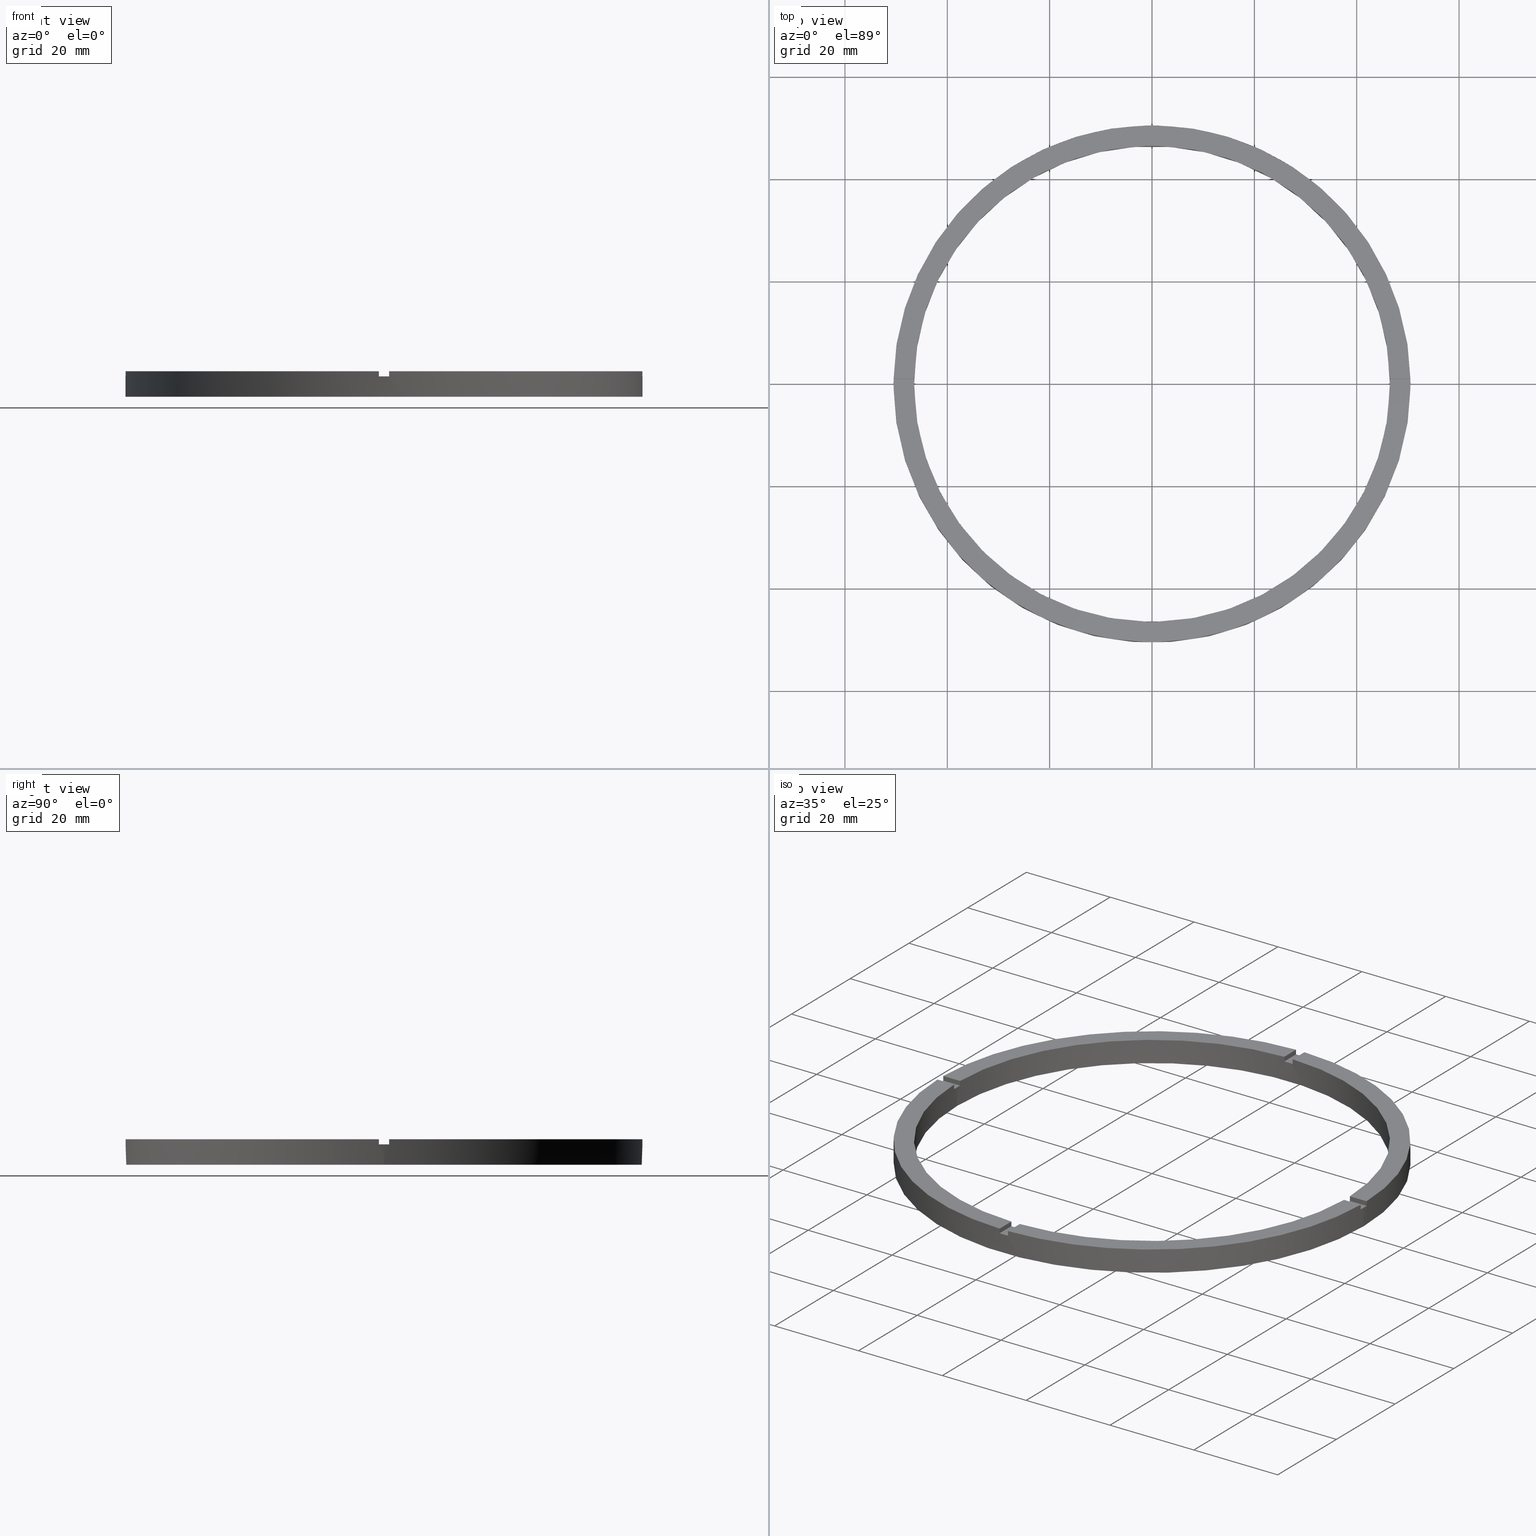
[diagram: canonical four-view strip — front | top / right | iso, engineering-drawing reading convention]
A machine part, canonical four-view strip (front | top / right | iso — engineering-drawing reading convention). The complete STEP part file that produces these views, byte-faithful:
ISO-10303-21;
HEADER;
FILE_DESCRIPTION (( 'STEP AP203' ),
    '1' );
FILE_NAME ('514206.step',
    '2024-12-26T02:47:58',
    ( 'MSI' ),
    ( '' ),
    'SwSTEP 2.0',
    'SolidWorks 2020',
    '' );
FILE_SCHEMA (( 'CONFIG_CONTROL_DESIGN' ));
ENDSEC;

DATA;
#1 = VECTOR ( 'NONE', #730, 1000.000000000000000 ) ;
#2 = CARTESIAN_POINT ( 'NONE',  ( 0.000000000000000000, 0.000000000000000000, 5.000000000000000000 ) ) ;
#3 = EDGE_CURVE ( 'NONE', #260, #658, #522, .T. ) ;
#4 = LINE ( 'NONE', #651, #780 ) ;
#5 = EDGE_CURVE ( 'NONE', #783, #206, #769, .T. ) ;
#6 = LINE ( 'NONE', #632, #269 ) ;
#7 = ORIENTED_EDGE ( 'NONE', *, *, #495, .T. ) ;
#8 = ORIENTED_EDGE ( 'NONE', *, *, #428, .T. ) ;
#9 = EDGE_CURVE ( 'NONE', #640, #690, #6, .T. ) ;
#10 = CARTESIAN_POINT ( 'NONE',  ( -46.48924606831132422, 0.9999999999999690248, 4.000000000000000000 ) ) ;
#11 = VECTOR ( 'NONE', #743, 1000.000000000000000 ) ;
#12 = VECTOR ( 'NONE', #236, 1000.000000000000000 ) ;
#13 = ORIENTED_EDGE ( 'NONE', *, *, #497, .F. ) ;
#14 = LINE ( 'NONE', #456, #306 ) ;
#15 = PRODUCT_DEFINITION_SHAPE ( 'NONE', 'NONE',  #620 ) ;
#16 = LINE ( 'NONE', #444, #545 ) ;
#17 = LINE ( 'NONE', #476, #568 ) ;
#18 = CARTESIAN_POINT ( 'NONE',  ( 0.000000000000000000, 0.000000000000000000, 4.000000000000000000 ) ) ;
#19 = LINE ( 'NONE', #37, #286 ) ;
#20 = CC_DESIGN_PERSON_AND_ORGANIZATION_ASSIGNMENT ( #297, #661, ( #177 ) ) ;
#21 = FACE_OUTER_BOUND ( 'NONE', #85, .T. ) ;
#22 = LINE ( 'NONE', #243, #274 ) ;
#23 = FACE_OUTER_BOUND ( 'NONE', #104, .T. ) ;
#24 = VECTOR ( 'NONE', #93, 1000.000000000000000 ) ;
#25 = DIRECTION ( 'NONE',  ( 1.000000000000000000, 0.000000000000000000, 0.000000000000000000 ) ) ;
#26 = AXIS2_PLACEMENT_3D ( 'NONE', #622, #766, #736 ) ;
#27 = FACE_OUTER_BOUND ( 'NONE', #352, .T. ) ;
#28 = AXIS2_PLACEMENT_3D ( 'NONE', #291, #380, #534 ) ;
#29 = LINE ( 'NONE', #674, #56 ) ;
#30 = FACE_OUTER_BOUND ( 'NONE', #445, .T. ) ;
#31 = APPROVAL_STATUS ( 'not_yet_approved' ) ;
#32 = PRODUCT_DEFINITION_FORMATION_WITH_SPECIFIED_SOURCE ( '�κ�', '', #177, .NOT_KNOWN. ) ;
#33 = LINE ( 'NONE', #223, #294 ) ;
#34 = CALENDAR_DATE ( 2024, 26, 12 ) ;
#35 = DESIGN_CONTEXT ( 'detailed design', #731, 'design' ) ;
#36 = DIRECTION ( 'NONE',  ( 0.000000000000000000, 0.000000000000000000, 1.000000000000000000 ) ) ;
#37 = CARTESIAN_POINT ( 'NONE',  ( 46.48924606831132422, 0.9999999999998447908, 5.000000000000000000 ) ) ;
#38 = VECTOR ( 'NONE', #458, 1000.000000000000000 ) ;
#39 = COORDINATED_UNIVERSAL_TIME_OFFSET ( 8, 0, .AHEAD. ) ;
#40 = LINE ( 'NONE', #615, #552 ) ;
#41 = COORDINATED_UNIVERSAL_TIME_OFFSET ( 8, 0, .AHEAD. ) ;
#42 = EDGE_CURVE ( 'NONE', #171, #729, #245, .T. ) ;
#43 = EDGE_CURVE ( 'NONE', #165, #372, #262, .T. ) ;
#44 = ADVANCED_FACE ( 'NONE', ( #530, #532 ), #119, .F. ) ;
#45 = APPLICATION_CONTEXT ( 'configuration controlled 3d designs of mechanical parts and assemblies' ) ;
#46 = PERSON_AND_ORGANIZATION ( #434, #325 ) ;
#47 = CIRCLE ( 'NONE', #28, 46.50000000000000000 ) ;
#48 = LOCAL_TIME ( 10, 47, 58.00000000000000000, #587 ) ;
#49 = DIRECTION ( 'NONE',  ( 0.000000000000000000, 0.000000000000000000, 1.000000000000000000 ) ) ;
#50 = CARTESIAN_POINT ( 'NONE',  ( -46.50000000000000000, 0.000000000000000000, 4.000000000000000000 ) ) ;
#51 = CIRCLE ( 'NONE', #98, 46.50000000000000000 ) ;
#52 = LINE ( 'NONE', #505, #573 ) ;
#53 = LOCAL_TIME ( 10, 47, 58.00000000000000000, #39 ) ;
#54 = CYLINDRICAL_SURFACE ( 'NONE', #470, 50.50000000000000000 ) ;
#55 = CARTESIAN_POINT ( 'NONE',  ( 50.49009803912050387, -1.000000000000154987, 5.000000000000000000 ) ) ;
#56 = VECTOR ( 'NONE', #624, 1000.000000000000000 ) ;
#57 = DIRECTION ( 'NONE',  ( 0.000000000000000000, 0.000000000000000000, 1.000000000000000000 ) ) ;
#58 = FACE_OUTER_BOUND ( 'NONE', #540, .T. ) ;
#59 = FACE_OUTER_BOUND ( 'NONE', #612, .T. ) ;
#60 = VECTOR ( 'NONE', #481, 1000.000000000000000 ) ;
#61 = PERSON_AND_ORGANIZATION_ROLE ( 'creator' ) ;
#62 = APPROVAL_PERSON_ORGANIZATION ( #604, #650, #117 ) ;
#63 = DIRECTION ( 'NONE',  ( 1.000000000000000000, 0.000000000000000000, 0.000000000000000000 ) ) ;
#64 = FACE_OUTER_BOUND ( 'NONE', #590, .T. ) ;
#65 = PLANE ( 'NONE',  #700 ) ;
#66 = VECTOR ( 'NONE', #446, 1000.000000000000000 ) ;
#67 = EDGE_CURVE ( 'NONE', #146, #170, #519, .T. ) ;
#68 = VECTOR ( 'NONE', #735, 1000.000000000000000 ) ;
#69 = DATE_AND_TIME ( #74, #589 ) ;
#70 = ORIENTED_EDGE ( 'NONE', *, *, #707, .T. ) ;
#71 = DIRECTION ( 'NONE',  ( 0.000000000000000000, 0.000000000000000000, 1.000000000000000000 ) ) ;
#72 = ORIENTED_EDGE ( 'NONE', *, *, #300, .F. ) ;
#73 = DIRECTION ( 'NONE',  ( 0.000000000000000000, 0.000000000000000000, 1.000000000000000000 ) ) ;
#74 = CALENDAR_DATE ( 2024, 26, 12 ) ;
#75 = ORIENTED_EDGE ( 'NONE', *, *, #744, .F. ) ;
#76 = PLANE ( 'NONE',  #155 ) ;
#77 = LINE ( 'NONE', #424, #60 ) ;
#78 = ORIENTED_EDGE ( 'NONE', *, *, #475, .F. ) ;
#79 = APPROVAL_DATE_TIME ( #578, #385 ) ;
#80 = ORIENTED_EDGE ( 'NONE', *, *, #393, .F. ) ;
#81 = DIRECTION ( 'NONE',  ( 1.000000000000000000, 6.505213034913025371E-17, 0.000000000000000000 ) ) ;
#82 = PERSON_AND_ORGANIZATION ( #434, #325 ) ;
#83 = ORIENTED_EDGE ( 'NONE', *, *, #427, .F. ) ;
#84 = DIRECTION ( 'NONE',  ( 1.301042606982605074E-16, -1.000000000000000000, 0.000000000000000000 ) ) ;
#85 = EDGE_LOOP ( 'NONE', ( #671, #347, #154, #75 ) ) ;
#86 = PLANE ( 'NONE',  #531 ) ;
#87 = AXIS2_PLACEMENT_3D ( 'NONE', #486, #71, #308 ) ;
#88 = ORIENTED_EDGE ( 'NONE', *, *, #173, .F. ) ;
#89 = PLANE ( 'NONE',  #491 ) ;
#90 = VERTEX_POINT ( 'NONE', #121 ) ;
#91 = DIRECTION ( 'NONE',  ( 0.000000000000000000, 0.000000000000000000, 1.000000000000000000 ) ) ;
#92 = VERTEX_POINT ( 'NONE', #608 ) ;
#93 = DIRECTION ( 'NONE',  ( -0.000000000000000000, -0.000000000000000000, -1.000000000000000000 ) ) ;
#94 = ORIENTED_EDGE ( 'NONE', *, *, #391, .F. ) ;
#95 = ORIENTED_EDGE ( 'NONE', *, *, #774, .T. ) ;
#96 = DIRECTION ( 'NONE',  ( 0.000000000000000000, 0.000000000000000000, 1.000000000000000000 ) ) ;
#97 = EDGE_LOOP ( 'NONE', ( #605, #346, #102, #425 ) ) ;
#98 = AXIS2_PLACEMENT_3D ( 'NONE', #2, #726, #457 ) ;
#99 = ORIENTED_EDGE ( 'NONE', *, *, #397, .F. ) ;
#100 = PLANE ( 'NONE',  #763 ) ;
#101 = ORIENTED_EDGE ( 'NONE', *, *, #485, .F. ) ;
#102 = ORIENTED_EDGE ( 'NONE', *, *, #350, .F. ) ;
#103 = ORIENTED_EDGE ( 'NONE', *, *, #482, .T. ) ;
#104 = EDGE_LOOP ( 'NONE', ( #602, #377, #765, #249, #413, #677, #430, #514, #689, #162, #441, #342 ) ) ;
#105 = EDGE_CURVE ( 'NONE', #116, #403, #508, .T. ) ;
#106 = VERTEX_POINT ( 'NONE', #594 ) ;
#107 = ORIENTED_EDGE ( 'NONE', *, *, #250, .F. ) ;
#108 = CARTESIAN_POINT ( 'NONE',  ( -1.000000000000026867, 40.50000000000000000, 5.000000000000000000 ) ) ;
#109 = ORIENTED_EDGE ( 'NONE', *, *, #391, .T. ) ;
#110 = EDGE_CURVE ( 'NONE', #158, #690, #516, .T. ) ;
#111 = ORIENTED_EDGE ( 'NONE', *, *, #595, .F. ) ;
#112 = ORIENTED_EDGE ( 'NONE', *, *, #427, .T. ) ;
#113 = ORIENTED_EDGE ( 'NONE', *, *, #277, .T. ) ;
#114 = CARTESIAN_POINT ( 'NONE',  ( 50.49009803912050387, -1.000000000000154987, 4.000000000000000000 ) ) ;
#115 = ORIENTED_EDGE ( 'NONE', *, *, #350, .T. ) ;
#116 = VERTEX_POINT ( 'NONE', #220 ) ;
#117 = APPROVAL_ROLE ( '' ) ;
#118 = EDGE_CURVE ( 'NONE', #175, #372, #4, .T. ) ;
#119 = PLANE ( 'NONE',  #461 ) ;
#120 = APPLICATION_PROTOCOL_DEFINITION ( 'international standard', 'config_control_design', 1994, #731 ) ;
#121 = CARTESIAN_POINT ( 'NONE',  ( 46.48924606831132422, -1.000000000000155209, 4.000000000000000000 ) ) ;
#122 = CARTESIAN_POINT ( 'NONE',  ( 46.50000000000000000, 5.694607616035192278E-15, 0.000000000000000000 ) ) ;
#123 = PERSON_AND_ORGANIZATION_ROLE ( 'creator' ) ;
#124 = AXIS2_PLACEMENT_3D ( 'NONE', #454, #144, #197 ) ;
#125 = DIRECTION ( 'NONE',  ( -1.000000000000000000, 0.000000000000000000, 0.000000000000000000 ) ) ;
#126 = DIRECTION ( 'NONE',  ( 0.000000000000000000, 0.000000000000000000, 1.000000000000000000 ) ) ;
#127 =( LENGTH_UNIT ( ) NAMED_UNIT ( * ) SI_UNIT ( .MILLI., .METRE. ) );
#128 = CARTESIAN_POINT ( 'NONE',  ( 0.000000000000000000, 0.000000000000000000, 4.000000000000000000 ) ) ;
#129 = AXIS2_PLACEMENT_3D ( 'NONE', #234, #759, #138 ) ;
#130 = AXIS2_PLACEMENT_3D ( 'NONE', #452, #645, #638 ) ;
#131 = PERSON_AND_ORGANIZATION_ROLE ( 'classification_officer' ) ;
#132 = DIRECTION ( 'NONE',  ( -0.000000000000000000, -0.000000000000000000, -1.000000000000000000 ) ) ;
#133 = CARTESIAN_POINT ( 'NONE',  ( 0.9999999999999731326, 50.49009803912050387, 5.000000000000000000 ) ) ;
#134 = EDGE_CURVE ( 'NONE', #158, #623, #777, .T. ) ;
#135 = ORIENTED_EDGE ( 'NONE', *, *, #708, .T. ) ;
#136 = CARTESIAN_POINT ( 'NONE',  ( -1.000000000000026867, 40.50000000000000000, 4.000000000000000000 ) ) ;
#137 = ORIENTED_EDGE ( 'NONE', *, *, #172, .T. ) ;
#138 = DIRECTION ( 'NONE',  ( 1.000000000000000000, 0.000000000000000000, 0.000000000000000000 ) ) ;
#139 = VERTEX_POINT ( 'NONE', #711 ) ;
#140 = DIRECTION ( 'NONE',  ( 0.000000000000000000, 0.000000000000000000, -1.000000000000000000 ) ) ;
#141 = VERTEX_POINT ( 'NONE', #215 ) ;
#142 = EDGE_CURVE ( 'NONE', #669, #775, #770, .T. ) ;
#143 = ORIENTED_EDGE ( 'NONE', *, *, #390, .T. ) ;
#144 = DIRECTION ( 'NONE',  ( 0.000000000000000000, 0.000000000000000000, 1.000000000000000000 ) ) ;
#145 = DIRECTION ( 'NONE',  ( 0.000000000000000000, 0.000000000000000000, 1.000000000000000000 ) ) ;
#146 = VERTEX_POINT ( 'NONE', #368 ) ;
#147 = DIRECTION ( 'NONE',  ( 1.000000000000000000, 0.000000000000000000, 0.000000000000000000 ) ) ;
#148 = ORIENTED_EDGE ( 'NONE', *, *, #497, .T. ) ;
#149 = ORIENTED_EDGE ( 'NONE', *, *, #482, .F. ) ;
#150 = CARTESIAN_POINT ( 'NONE',  ( -50.49009803912050387, 0.9999999999999683586, 5.000000000000000000 ) ) ;
#151 = ORIENTED_EDGE ( 'NONE', *, *, #43, .F. ) ;
#152 = ORIENTED_EDGE ( 'NONE', *, *, #595, .T. ) ;
#153 = DIRECTION ( 'NONE',  ( -0.000000000000000000, -0.000000000000000000, -1.000000000000000000 ) ) ;
#154 = ORIENTED_EDGE ( 'NONE', *, *, #646, .F. ) ;
#155 = AXIS2_PLACEMENT_3D ( 'NONE', #450, #691, #298 ) ;
#156 = ORIENTED_EDGE ( 'NONE', *, *, #478, .F. ) ;
#157 = CARTESIAN_POINT ( 'NONE',  ( -50.50000000000000000, 0.000000000000000000, 4.000000000000000000 ) ) ;
#158 = VERTEX_POINT ( 'NONE', #714 ) ;
#159 = ORIENTED_EDGE ( 'NONE', *, *, #209, .T. ) ;
#160 = DIRECTION ( 'NONE',  ( 1.000000000000000000, 0.000000000000000000, -0.000000000000000000 ) ) ;
#161 = ORIENTED_EDGE ( 'NONE', *, *, #559, .F. ) ;
#162 = ORIENTED_EDGE ( 'NONE', *, *, #5, .F. ) ;
#163 = ORIENTED_EDGE ( 'NONE', *, *, #746, .F. ) ;
#164 = ORIENTED_EDGE ( 'NONE', *, *, #393, .T. ) ;
#165 = VERTEX_POINT ( 'NONE', #709 ) ;
#166 = DIRECTION ( 'NONE',  ( 0.000000000000000000, 0.000000000000000000, 1.000000000000000000 ) ) ;
#167 = AXIS2_PLACEMENT_3D ( 'NONE', #500, #432, #512 ) ;
#168 = AXIS2_PLACEMENT_3D ( 'NONE', #696, #166, #740 ) ;
#169 = ADVANCED_FACE ( 'NONE', ( #251 ), #533, .T. ) ;
#170 = VERTEX_POINT ( 'NONE', #150 ) ;
#171 = VERTEX_POINT ( 'NONE', #157 ) ;
#172 = EDGE_CURVE ( 'NONE', #146, #619, #504, .T. ) ;
#173 = EDGE_CURVE ( 'NONE', #653, #171, #537, .T. ) ;
#174 = ORIENTED_EDGE ( 'NONE', *, *, #118, .F. ) ;
#175 = VERTEX_POINT ( 'NONE', #114 ) ;
#176 = VERTEX_POINT ( 'NONE', #214 ) ;
#177 = PRODUCT ( '514206', '514206', '', ( #222 ) ) ;
#178 = ORIENTED_EDGE ( 'NONE', *, *, #679, .F. ) ;
#179 = EDGE_LOOP ( 'NONE', ( #448, #698, #99, #443 ) ) ;
#180 = CARTESIAN_POINT ( 'NONE',  ( 50.49009803912051098, 0.9999999999998450129, 4.000000000000000000 ) ) ;
#181 = ADVANCED_FACE ( 'NONE', ( #268 ), #89, .F. ) ;
#182 = APPROVAL_ROLE ( '' ) ;
#183 = DIRECTION ( 'NONE',  ( 1.000000000000000000, 0.000000000000000000, 0.000000000000000000 ) ) ;
#184 = DIRECTION ( 'NONE',  ( 0.000000000000000000, 0.000000000000000000, 1.000000000000000000 ) ) ;
#185 = CC_DESIGN_APPROVAL ( #385, ( #32 ) ) ;
#186 = CARTESIAN_POINT ( 'NONE',  ( 0.000000000000000000, 0.000000000000000000, 4.000000000000000000 ) ) ;
#187 = CARTESIAN_POINT ( 'NONE',  ( 0.000000000000000000, 0.000000000000000000, 0.000000000000000000 ) ) ;
#188 = UNCERTAINTY_MEASURE_WITH_UNIT (LENGTH_MEASURE( 1.000000000000000082E-05 ), #127, 'distance_accuracy_value', 'NONE');
#189 = DIRECTION ( 'NONE',  ( -0.000000000000000000, -0.000000000000000000, -1.000000000000000000 ) ) ;
#190 = AXIS2_PLACEMENT_3D ( 'NONE', #549, #437, #556 ) ;
#191 = AXIS2_PLACEMENT_3D ( 'NONE', #513, #433, #750 ) ;
#192 = PLANE ( 'NONE',  #440 ) ;
#193 = DIRECTION ( 'NONE',  ( 1.000000000000000000, 0.000000000000000000, 0.000000000000000000 ) ) ;
#194 = DIRECTION ( 'NONE',  ( -1.000000000000000000, 0.000000000000000000, 0.000000000000000000 ) ) ;
#195 = PLANE ( 'NONE',  #652 ) ;
#196 = EDGE_CURVE ( 'NONE', #208, #139, #543, .T. ) ;
#197 = DIRECTION ( 'NONE',  ( 1.000000000000000000, 0.000000000000000000, 0.000000000000000000 ) ) ;
#198 = DIRECTION ( 'NONE',  ( -1.301042606982605074E-16, 1.000000000000000000, -0.000000000000000000 ) ) ;
#199 = AXIS2_PLACEMENT_3D ( 'NONE', #678, #73, #147 ) ;
#200 = CARTESIAN_POINT ( 'NONE',  ( 0.000000000000000000, 0.000000000000000000, 4.000000000000000000 ) ) ;
#201 = EDGE_CURVE ( 'NONE', #116, #141, #502, .T. ) ;
#202 = DIRECTION ( 'NONE',  ( -1.301042606982605074E-16, 1.000000000000000000, 0.000000000000000000 ) ) ;
#203 = EDGE_LOOP ( 'NONE', ( #353, #360, #366, #416 ) ) ;
#204 = EDGE_LOOP ( 'NONE', ( #137, #103, #639, #156 ) ) ;
#205 = CARTESIAN_POINT ( 'NONE',  ( -1.000000000000026867, 46.48924606831132422, 5.000000000000000000 ) ) ;
#206 = VERTEX_POINT ( 'NONE', #314 ) ;
#207 = CARTESIAN_POINT ( 'NONE',  ( 0.000000000000000000, 0.000000000000000000, 4.000000000000000000 ) ) ;
#208 = VERTEX_POINT ( 'NONE', #212 ) ;
#209 = EDGE_CURVE ( 'NONE', #171, #426, #772, .T. ) ;
#210 = ADVANCED_BREP_SHAPE_REPRESENTATION ( '514206', ( #710, #720 ), #213 ) ;
#211 = CARTESIAN_POINT ( 'NONE',  ( -1.000000000000156541, -50.49009803912050387, 5.000000000000000000 ) ) ;
#212 = CARTESIAN_POINT ( 'NONE',  ( 50.49009803912051098, 0.9999999999998450129, 5.000000000000000000 ) ) ;
#213 =( GEOMETRIC_REPRESENTATION_CONTEXT ( 3 ) GLOBAL_UNCERTAINTY_ASSIGNED_CONTEXT ( ( #188 ) ) GLOBAL_UNIT_ASSIGNED_CONTEXT ( ( #127, #752, #764 ) ) REPRESENTATION_CONTEXT ( 'NONE', 'WORKASPACE' ) );
#214 = CARTESIAN_POINT ( 'NONE',  ( -1.000000000000156986, -46.48924606831132422, 5.000000000000000000 ) ) ;
#215 = CARTESIAN_POINT ( 'NONE',  ( -1.000000000000156541, -50.49009803912050387, 5.000000000000000000 ) ) ;
#216 = CARTESIAN_POINT ( 'NONE',  ( 0.000000000000000000, 0.000000000000000000, 5.000000000000000000 ) ) ;
#217 = APPROVAL_ROLE ( '' ) ;
#218 = AXIS2_PLACEMENT_3D ( 'NONE', #304, #235, #395 ) ;
#219 = ADVANCED_FACE ( 'NONE', ( #761 ), #459, .F. ) ;
#220 = CARTESIAN_POINT ( 'NONE',  ( -1.000000000000156541, -50.49009803912050387, 4.000000000000000000 ) ) ;
#221 = CARTESIAN_POINT ( 'NONE',  ( 0.9999999999999731326, 50.49009803912050387, 4.000000000000000000 ) ) ;
#222 = MECHANICAL_CONTEXT ( 'NONE', #45, 'mechanical' ) ;
#223 = CARTESIAN_POINT ( 'NONE',  ( 0.9999999999998421263, -40.50000000000018474, 4.000000000000000000 ) ) ;
#224 = CARTESIAN_POINT ( 'NONE',  ( 0.000000000000000000, 0.000000000000000000, 4.000000000000000000 ) ) ;
#225 = DIRECTION ( 'NONE',  ( 1.000000000000000000, 0.000000000000000000, 0.000000000000000000 ) ) ;
#226 = PLANE ( 'NONE',  #349 ) ;
#227 = DIRECTION ( 'NONE',  ( -0.000000000000000000, -1.000000000000000000, -0.000000000000000000 ) ) ;
#228 = CARTESIAN_POINT ( 'NONE',  ( 0.000000000000000000, 0.000000000000000000, 5.000000000000000000 ) ) ;
#229 = PLANE ( 'NONE',  #191 ) ;
#230 = DIRECTION ( 'NONE',  ( 6.505213034913025371E-17, -1.000000000000000000, 0.000000000000000000 ) ) ;
#231 = DIRECTION ( 'NONE',  ( 1.301042606982605074E-16, -1.000000000000000000, 0.000000000000000000 ) ) ;
#232 = DIRECTION ( 'NONE',  ( 1.000000000000000000, 0.000000000000000000, 0.000000000000000000 ) ) ;
#233 = AXIS2_PLACEMENT_3D ( 'NONE', #667, #126, #755 ) ;
#234 = CARTESIAN_POINT ( 'NONE',  ( 0.000000000000000000, 0.000000000000000000, 4.000000000000000000 ) ) ;
#235 = DIRECTION ( 'NONE',  ( 0.000000000000000000, 0.000000000000000000, 1.000000000000000000 ) ) ;
#236 = DIRECTION ( 'NONE',  ( -1.000000000000000000, -6.505213034913025371E-17, -0.000000000000000000 ) ) ;
#237 = CARTESIAN_POINT ( 'NONE',  ( 0.9999999999999731326, 46.48924606831132422, 4.000000000000000000 ) ) ;
#238 = CARTESIAN_POINT ( 'NONE',  ( 0.000000000000000000, 0.000000000000000000, 5.000000000000000000 ) ) ;
#239 = AXIS2_PLACEMENT_3D ( 'NONE', #584, #36, #718 ) ;
#240 = AXIS2_PLACEMENT_3D ( 'NONE', #187, #57, #597 ) ;
#241 = DIRECTION ( 'NONE',  ( 1.000000000000000000, 0.000000000000000000, 0.000000000000000000 ) ) ;
#242 = DIRECTION ( 'NONE',  ( 0.000000000000000000, 0.000000000000000000, 1.000000000000000000 ) ) ;
#243 = CARTESIAN_POINT ( 'NONE',  ( -1.000000000000026867, 50.49009803912050387, 5.000000000000000000 ) ) ;
#244 = FACE_OUTER_BOUND ( 'NONE', #523, .T. ) ;
#245 = LINE ( 'NONE', #734, #527 ) ;
#246 = EDGE_CURVE ( 'NONE', #418, #660, #507, .T. ) ;
#247 = AXIS2_PLACEMENT_3D ( 'NONE', #270, #49, #25 ) ;
#248 = VECTOR ( 'NONE', #296, 1000.000000000000000 ) ;
#249 = ORIENTED_EDGE ( 'NONE', *, *, #474, .F. ) ;
#250 = EDGE_CURVE ( 'NONE', #623, #405, #255, .T. ) ;
#251 = FACE_OUTER_BOUND ( 'NONE', #442, .T. ) ;
#252 = VECTOR ( 'NONE', #227, 1000.000000000000000 ) ;
#253 = VERTEX_POINT ( 'NONE', #479 ) ;
#254 = FACE_OUTER_BOUND ( 'NONE', #401, .T. ) ;
#255 = CIRCLE ( 'NONE', #528, 46.50000000000000000 ) ;
#256 = ADVANCED_FACE ( 'NONE', ( #244 ), #455, .F. ) ;
#257 = VECTOR ( 'NONE', #337, 1000.000000000000000 ) ;
#258 = ORIENTED_EDGE ( 'NONE', *, *, #201, .T. ) ;
#259 = CARTESIAN_POINT ( 'NONE',  ( -46.48924606831132422, -1.000000000000031086, 5.000000000000000000 ) ) ;
#260 = VERTEX_POINT ( 'NONE', #237 ) ;
#261 = PRODUCT_RELATED_PRODUCT_CATEGORY ( 'detail', '', ( #177 ) ) ;
#262 = CIRCLE ( 'NONE', #247, 50.50000000000000000 ) ;
#263 = DIRECTION ( 'NONE',  ( 0.000000000000000000, 0.000000000000000000, 1.000000000000000000 ) ) ;
#264 = ORIENTED_EDGE ( 'NONE', *, *, #428, .F. ) ;
#265 = ORIENTED_EDGE ( 'NONE', *, *, #67, .F. ) ;
#266 = DIRECTION ( 'NONE',  ( -0.000000000000000000, -0.000000000000000000, -1.000000000000000000 ) ) ;
#267 = VERTEX_POINT ( 'NONE', #382 ) ;
#268 = FACE_OUTER_BOUND ( 'NONE', #179, .T. ) ;
#269 = VECTOR ( 'NONE', #449, 1000.000000000000000 ) ;
#270 = CARTESIAN_POINT ( 'NONE',  ( 0.000000000000000000, 0.000000000000000000, 5.000000000000000000 ) ) ;
#271 = CARTESIAN_POINT ( 'NONE',  ( 0.000000000000000000, 0.000000000000000000, 4.000000000000000000 ) ) ;
#272 = ADVANCED_FACE ( 'NONE', ( #254 ), #299, .T. ) ;
#273 = VECTOR ( 'NONE', #654, 1000.000000000000000 ) ;
#274 = VECTOR ( 'NONE', #153, 1000.000000000000000 ) ;
#275 = CIRCLE ( 'NONE', #723, 50.50000000000000000 ) ;
#276 = CARTESIAN_POINT ( 'NONE',  ( -40.50000000000019185, 0.9999999999999703570, 4.000000000000000000 ) ) ;
#277 = EDGE_CURVE ( 'NONE', #260, #668, #762, .T. ) ;
#278 = FACE_OUTER_BOUND ( 'NONE', #621, .T. ) ;
#279 = DIRECTION ( 'NONE',  ( 1.000000000000000000, 0.000000000000000000, 0.000000000000000000 ) ) ;
#280 = FACE_OUTER_BOUND ( 'NONE', #97, .T. ) ;
#281 = CYLINDRICAL_SURFACE ( 'NONE', #415, 46.50000000000000000 ) ;
#282 = AXIS2_PLACEMENT_3D ( 'NONE', #18, #96, #241 ) ;
#283 = CARTESIAN_POINT ( 'NONE',  ( 0.000000000000000000, 0.000000000000000000, 4.000000000000000000 ) ) ;
#284 = LINE ( 'NONE', #396, #38 ) ;
#285 = CARTESIAN_POINT ( 'NONE',  ( 0.000000000000000000, 0.000000000000000000, 5.000000000000000000 ) ) ;
#286 = VECTOR ( 'NONE', #719, 1000.000000000000000 ) ;
#287 = VECTOR ( 'NONE', #84, 1000.000000000000000 ) ;
#288 = CIRCLE ( 'NONE', #724, 46.50000000000000000 ) ;
#289 = CARTESIAN_POINT ( 'NONE',  ( 0.000000000000000000, 0.000000000000000000, 0.000000000000000000 ) ) ;
#290 = CIRCLE ( 'NONE', #699, 46.50000000000000000 ) ;
#291 = CARTESIAN_POINT ( 'NONE',  ( 0.000000000000000000, 0.000000000000000000, 4.000000000000000000 ) ) ;
#292 = CIRCLE ( 'NONE', #328, 46.50000000000000000 ) ;
#293 = DIRECTION ( 'NONE',  ( 0.000000000000000000, 0.000000000000000000, 1.000000000000000000 ) ) ;
#294 = VECTOR ( 'NONE', #198, 1000.000000000000000 ) ;
#295 = LINE ( 'NONE', #438, #287 ) ;
#296 = DIRECTION ( 'NONE',  ( 0.000000000000000000, 1.000000000000000000, 0.000000000000000000 ) ) ;
#297 = PERSON_AND_ORGANIZATION ( #434, #325 ) ;
#298 = DIRECTION ( 'NONE',  ( 0.000000000000000000, 0.000000000000000000, 1.000000000000000000 ) ) ;
#299 = PLANE ( 'NONE',  #580 ) ;
#300 = EDGE_CURVE ( 'NONE', #253, #372, #521, .T. ) ;
#301 = CIRCLE ( 'NONE', #218, 46.50000000000000000 ) ;
#302 = CARTESIAN_POINT ( 'NONE',  ( 0.9999999999998434586, -50.49009803912051098, 4.000000000000000000 ) ) ;
#303 = LINE ( 'NONE', #739, #313 ) ;
#304 = CARTESIAN_POINT ( 'NONE',  ( 0.000000000000000000, 0.000000000000000000, 5.000000000000000000 ) ) ;
#305 = FACE_OUTER_BOUND ( 'NONE', #472, .T. ) ;
#306 = VECTOR ( 'NONE', #518, 1000.000000000000000 ) ;
#307 = APPROVAL_DATE_TIME ( #69, #464 ) ;
#308 = DIRECTION ( 'NONE',  ( 1.000000000000000000, 0.000000000000000000, 0.000000000000000000 ) ) ;
#309 = VECTOR ( 'NONE', #231, 1000.000000000000000 ) ;
#310 = DIRECTION ( 'NONE',  ( 0.000000000000000000, 0.000000000000000000, 1.000000000000000000 ) ) ;
#311 = FACE_OUTER_BOUND ( 'NONE', #515, .T. ) ;
#312 = CALENDAR_DATE ( 2024, 26, 12 ) ;
#313 = VECTOR ( 'NONE', #91, 1000.000000000000000 ) ;
#314 = CARTESIAN_POINT ( 'NONE',  ( 0.9999999999998430145, -46.48924606831132422, 4.000000000000000000 ) ) ;
#315 = CIRCLE ( 'NONE', #417, 50.50000000000000000 ) ;
#316 = COORDINATED_UNIVERSAL_TIME_OFFSET ( 8, 0, .AHEAD. ) ;
#317 = SECURITY_CLASSIFICATION ( '', '', #588 ) ;
#318 = VECTOR ( 'NONE', #756, 1000.000000000000000 ) ;
#319 = CARTESIAN_POINT ( 'NONE',  ( -46.50000000000000000, 0.000000000000000000, 5.000000000000000000 ) ) ;
#320 = VECTOR ( 'NONE', #634, 1000.000000000000000 ) ;
#321 = DATE_AND_TIME ( #34, #53 ) ;
#322 = CIRCLE ( 'NONE', #87, 46.50000000000000000 ) ;
#323 = DIRECTION ( 'NONE',  ( 1.000000000000000000, 0.000000000000000000, 0.000000000000000000 ) ) ;
#324 = CIRCLE ( 'NONE', #572, 50.50000000000000000 ) ;
#325 = ORGANIZATION ( 'δָ��', 'δָ��', '' ) ;
#326 = DIRECTION ( 'NONE',  ( 0.000000000000000000, 0.000000000000000000, 1.000000000000000000 ) ) ;
#327 = ORIENTED_EDGE ( 'NONE', *, *, #118, .T. ) ;
#328 = AXIS2_PLACEMENT_3D ( 'NONE', #128, #381, #225 ) ;
#329 = ORIENTED_EDGE ( 'NONE', *, *, #774, .F. ) ;
#330 = VECTOR ( 'NONE', #184, 1000.000000000000000 ) ;
#331 = LOCAL_TIME ( 10, 47, 58.00000000000000000, #316 ) ;
#332 = ORIENTED_EDGE ( 'NONE', *, *, #474, .T. ) ;
#333 = CIRCLE ( 'NONE', #124, 46.50000000000000000 ) ;
#334 = AXIS2_PLACEMENT_3D ( 'NONE', #484, #536, #630 ) ;
#335 = SHAPE_DEFINITION_REPRESENTATION ( #15, #210 ) ;
#336 = VERTEX_POINT ( 'NONE', #10 ) ;
#337 = DIRECTION ( 'NONE',  ( 1.000000000000000000, 6.505213034913025371E-17, 0.000000000000000000 ) ) ;
#338 = DATE_AND_TIME ( #569, #565 ) ;
#339 = ORIENTED_EDGE ( 'NONE', *, *, #196, .F. ) ;
#340 = LINE ( 'NONE', #384, #66 ) ;
#341 = APPROVAL_PERSON_ORGANIZATION ( #582, #385, #217 ) ;
#342 = ORIENTED_EDGE ( 'NONE', *, *, #496, .F. ) ;
#343 = EDGE_CURVE ( 'NONE', #466, #141, #782, .T. ) ;
#344 = APPROVAL_DATE_TIME ( #338, #650 ) ;
#345 = EDGE_CURVE ( 'NONE', #351, #116, #295, .T. ) ;
#346 = ORIENTED_EDGE ( 'NONE', *, *, #499, .F. ) ;
#347 = ORIENTED_EDGE ( 'NONE', *, *, #67, .T. ) ;
#348 = ORIENTED_EDGE ( 'NONE', *, *, #300, .T. ) ;
#349 = AXIS2_PLACEMENT_3D ( 'NONE', #276, #389, #373 ) ;
#350 = EDGE_CURVE ( 'NONE', #466, #669, #40, .T. ) ;
#351 = VERTEX_POINT ( 'NONE', #636 ) ;
#352 = EDGE_LOOP ( 'NONE', ( #329, #355, #635, #94 ) ) ;
#353 = ORIENTED_EDGE ( 'NONE', *, *, #105, .T. ) ;
#354 = DIRECTION ( 'NONE',  ( -0.000000000000000000, 0.000000000000000000, 1.000000000000000000 ) ) ;
#355 = ORIENTED_EDGE ( 'NONE', *, *, #663, .T. ) ;
#356 = ORIENTED_EDGE ( 'NONE', *, *, #42, .T. ) ;
#357 = EDGE_CURVE ( 'NONE', #668, #642, #17, .T. ) ;
#358 = DIRECTION ( 'NONE',  ( 1.000000000000000000, 0.000000000000000000, 0.000000000000000000 ) ) ;
#359 = ORIENTED_EDGE ( 'NONE', *, *, #779, .T. ) ;
#360 = ORIENTED_EDGE ( 'NONE', *, *, #397, .T. ) ;
#361 = CARTESIAN_POINT ( 'NONE',  ( 46.48924606831132422, 0.9999999999998447908, 4.000000000000000000 ) ) ;
#362 = ORIENTED_EDGE ( 'NONE', *, *, #463, .F. ) ;
#363 = EDGE_CURVE ( 'NONE', #260, #660, #290, .T. ) ;
#364 = ADVANCED_FACE ( 'NONE', ( #21 ), #773, .T. ) ;
#365 = ORIENTED_EDGE ( 'NONE', *, *, #246, .T. ) ;
#366 = ORIENTED_EDGE ( 'NONE', *, *, #412, .F. ) ;
#367 = ORIENTED_EDGE ( 'NONE', *, *, #209, .F. ) ;
#368 = CARTESIAN_POINT ( 'NONE',  ( -1.000000000000026867, 50.49009803912050387, 5.000000000000000000 ) ) ;
#369 = DIRECTION ( 'NONE',  ( -0.000000000000000000, 0.000000000000000000, 1.000000000000000000 ) ) ;
#370 = ORIENTED_EDGE ( 'NONE', *, *, #663, .F. ) ;
#371 = ORIENTED_EDGE ( 'NONE', *, *, #357, .F. ) ;
#372 = VERTEX_POINT ( 'NONE', #55 ) ;
#373 = DIRECTION ( 'NONE',  ( -1.000000000000000000, -1.951563910473907735E-16, 0.000000000000000000 ) ) ;
#374 = ORIENTED_EDGE ( 'NONE', *, *, #538, .T. ) ;
#375 = CARTESIAN_POINT ( 'NONE',  ( 46.50000000000000000, 5.694607616035192278E-15, 5.000000000000000000 ) ) ;
#376 = CARTESIAN_POINT ( 'NONE',  ( 0.9999999999999731326, 46.48924606831132422, 5.000000000000000000 ) ) ;
#377 = ORIENTED_EDGE ( 'NONE', *, *, #134, .T. ) ;
#378 = CC_DESIGN_DATE_AND_TIME_ASSIGNMENT ( #321, #503, ( #620 ) ) ;
#379 = ORIENTED_EDGE ( 'NONE', *, *, #363, .T. ) ;
#380 = DIRECTION ( 'NONE',  ( 0.000000000000000000, 0.000000000000000000, 1.000000000000000000 ) ) ;
#381 = DIRECTION ( 'NONE',  ( 0.000000000000000000, 0.000000000000000000, 1.000000000000000000 ) ) ;
#382 = CARTESIAN_POINT ( 'NONE',  ( 50.50000000000000000, 6.184466335694133659E-15, 0.000000000000000000 ) ) ;
#383 = CARTESIAN_POINT ( 'NONE',  ( -1.000000000000026867, 50.49009803912050387, 4.000000000000000000 ) ) ;
#384 = CARTESIAN_POINT ( 'NONE',  ( 50.50000000000000000, 6.184466335694133659E-15, 5.000000000000000000 ) ) ;
#385 = APPROVAL ( #524, 'δָ��' ) ;
#386 = CARTESIAN_POINT ( 'NONE',  ( 0.9999999999998430145, -46.48924606831132422, 5.000000000000000000 ) ) ;
#387 = CARTESIAN_POINT ( 'NONE',  ( -40.50000000000019185, 0.9999999999999703570, 4.000000000000000000 ) ) ;
#388 = DIRECTION ( 'NONE',  ( 0.000000000000000000, -0.000000000000000000, 1.000000000000000000 ) ) ;
#389 = DIRECTION ( 'NONE',  ( -1.951563910473907735E-16, 1.000000000000000000, 0.000000000000000000 ) ) ;
#390 = EDGE_CURVE ( 'NONE', #176, #141, #566, .T. ) ;
#391 = EDGE_CURVE ( 'NONE', #653, #170, #16, .T. ) ;
#392 = CARTESIAN_POINT ( 'NONE',  ( 50.49009803912051098, 0.9999999999998450129, 5.000000000000000000 ) ) ;
#393 = EDGE_CURVE ( 'NONE', #208, #642, #574, .T. ) ;
#394 = DIRECTION ( 'NONE',  ( 1.000000000000000000, 0.000000000000000000, 0.000000000000000000 ) ) ;
#395 = DIRECTION ( 'NONE',  ( 1.000000000000000000, 0.000000000000000000, 0.000000000000000000 ) ) ;
#396 = CARTESIAN_POINT ( 'NONE',  ( 0.9999999999999731326, 50.49009803912050387, 5.000000000000000000 ) ) ;
#397 = EDGE_CURVE ( 'NONE', #403, #206, #33, .T. ) ;
#398 = ORIENTED_EDGE ( 'NONE', *, *, #110, .F. ) ;
#399 = ORIENTED_EDGE ( 'NONE', *, *, #666, .F. ) ;
#400 = EDGE_LOOP ( 'NONE', ( #627, #152, #618, #163 ) ) ;
#401 = EDGE_LOOP ( 'NONE', ( #112, #365, #644, #407 ) ) ;
#402 = CARTESIAN_POINT ( 'NONE',  ( 0.000000000000000000, 0.000000000000000000, 5.000000000000000000 ) ) ;
#403 = VERTEX_POINT ( 'NONE', #302 ) ;
#404 = ORIENTED_EDGE ( 'NONE', *, *, #706, .T. ) ;
#405 = VERTEX_POINT ( 'NONE', #526 ) ;
#406 = CC_DESIGN_PERSON_AND_ORGANIZATION_ASSIGNMENT ( #571, #131, ( #317 ) ) ;
#407 = ORIENTED_EDGE ( 'NONE', *, *, #3, .T. ) ;
#408 = ORIENTED_EDGE ( 'NONE', *, *, #357, .T. ) ;
#409 = ORIENTED_EDGE ( 'NONE', *, *, #460, .F. ) ;
#410 = ADVANCED_FACE ( 'NONE', ( #23 ), #281, .F. ) ;
#411 = ORIENTED_EDGE ( 'NONE', *, *, #708, .F. ) ;
#412 = EDGE_CURVE ( 'NONE', #351, #206, #554, .T. ) ;
#413 = ORIENTED_EDGE ( 'NONE', *, *, #463, .T. ) ;
#414 = DIRECTION ( 'NONE',  ( 1.000000000000000000, 0.000000000000000000, -0.000000000000000000 ) ) ;
#415 = AXIS2_PLACEMENT_3D ( 'NONE', #228, #132, #194 ) ;
#416 = ORIENTED_EDGE ( 'NONE', *, *, #345, .T. ) ;
#417 = AXIS2_PLACEMENT_3D ( 'NONE', #207, #647, #697 ) ;
#418 = VERTEX_POINT ( 'NONE', #383 ) ;
#419 = ORIENTED_EDGE ( 'NONE', *, *, #250, .T. ) ;
#420 = ADVANCED_FACE ( 'NONE', ( #27 ), #226, .F. ) ;
#421 = DIRECTION ( 'NONE',  ( 0.000000000000000000, 0.000000000000000000, 1.000000000000000000 ) ) ;
#422 = ORIENTED_EDGE ( 'NONE', *, *, #746, .T. ) ;
#423 = DIRECTION ( 'NONE',  ( 0.000000000000000000, 0.000000000000000000, 1.000000000000000000 ) ) ;
#424 = CARTESIAN_POINT ( 'NONE',  ( 0.9999999999998434586, -50.49009803912051098, 5.000000000000000000 ) ) ;
#425 = ORIENTED_EDGE ( 'NONE', *, *, #343, .T. ) ;
#426 = VERTEX_POINT ( 'NONE', #542 ) ;
#427 = EDGE_CURVE ( 'NONE', #658, #418, #561, .T. ) ;
#428 = EDGE_CURVE ( 'NONE', #267, #729, #275, .T. ) ;
#429 = ORIENTED_EDGE ( 'NONE', *, *, #105, .F. ) ;
#430 = ORIENTED_EDGE ( 'NONE', *, *, #499, .T. ) ;
#431 = ADVANCED_FACE ( 'NONE', ( #575 ), #54, .T. ) ;
#432 = DIRECTION ( 'NONE',  ( 0.000000000000000000, 0.000000000000000000, 1.000000000000000000 ) ) ;
#433 = DIRECTION ( 'NONE',  ( 0.000000000000000000, 0.000000000000000000, 1.000000000000000000 ) ) ;
#434 = PERSON ( 'δָ��', 'δָ��', 'δָ��', ('δָ��'), ('δָ��'), ('δָ��') ) ;
#435 = DIRECTION ( 'NONE',  ( 0.000000000000000000, -0.000000000000000000, 1.000000000000000000 ) ) ;
#436 = CARTESIAN_POINT ( 'NONE',  ( -1.000000000000156986, -46.48924606831132422, 5.000000000000000000 ) ) ;
#437 = DIRECTION ( 'NONE',  ( -6.505213034913025371E-17, 1.000000000000000000, 0.000000000000000000 ) ) ;
#438 = CARTESIAN_POINT ( 'NONE',  ( -1.000000000000157874, -40.50000000000018474, 4.000000000000000000 ) ) ;
#439 = CARTESIAN_POINT ( 'NONE',  ( -1.000000000000026867, 46.48924606831132422, 5.000000000000000000 ) ) ;
#440 = AXIS2_PLACEMENT_3D ( 'NONE', #541, #230, #81 ) ;
#441 = ORIENTED_EDGE ( 'NONE', *, *, #747, .T. ) ;
#442 = EDGE_LOOP ( 'NONE', ( #535, #135, #8, #665, #88, #109, #265, #662, #83, #539, #80, #422 ) ) ;
#443 = ORIENTED_EDGE ( 'NONE', *, *, #707, .F. ) ;
#444 = CARTESIAN_POINT ( 'NONE',  ( -50.49009803912050387, 0.9999999999999683586, 5.000000000000000000 ) ) ;
#445 = EDGE_LOOP ( 'NONE', ( #72, #688, #673, #680 ) ) ;
#446 = DIRECTION ( 'NONE',  ( -0.000000000000000000, -0.000000000000000000, -1.000000000000000000 ) ) ;
#447 = ORIENTED_EDGE ( 'NONE', *, *, #345, .F. ) ;
#448 = ORIENTED_EDGE ( 'NONE', *, *, #546, .T. ) ;
#449 = DIRECTION ( 'NONE',  ( -1.000000000000000000, -6.505213034913025371E-17, -0.000000000000000000 ) ) ;
#450 = CARTESIAN_POINT ( 'NONE',  ( -1.000000000000026867, 40.50000000000000000, 4.000000000000000000 ) ) ;
#451 = DIRECTION ( 'NONE',  ( 1.000000000000000000, 0.000000000000000000, -0.000000000000000000 ) ) ;
#452 = CARTESIAN_POINT ( 'NONE',  ( -40.50000000000019185, -1.000000000000029754, 4.000000000000000000 ) ) ;
#453 = CC_DESIGN_APPROVAL ( #650, ( #620 ) ) ;
#454 = CARTESIAN_POINT ( 'NONE',  ( 0.000000000000000000, 0.000000000000000000, 5.000000000000000000 ) ) ;
#455 = PLANE ( 'NONE',  #477 ) ;
#456 = CARTESIAN_POINT ( 'NONE',  ( 40.49999999999999289, -1.000000000000155653, 4.000000000000000000 ) ) ;
#457 = DIRECTION ( 'NONE',  ( 1.000000000000000000, 0.000000000000000000, 0.000000000000000000 ) ) ;
#458 = DIRECTION ( 'NONE',  ( 0.000000000000000000, 0.000000000000000000, 1.000000000000000000 ) ) ;
#459 = PLANE ( 'NONE',  #190 ) ;
#460 = EDGE_CURVE ( 'NONE', #90, #175, #14, .T. ) ;
#461 = AXIS2_PLACEMENT_3D ( 'NONE', #749, #664, #414 ) ;
#462 = DIRECTION ( 'NONE',  ( -1.000000000000000000, 0.000000000000000000, 0.000000000000000000 ) ) ;
#463 = EDGE_CURVE ( 'NONE', #675, #775, #47, .T. ) ;
#464 = APPROVAL ( #31, 'δָ��' ) ;
#465 = ADVANCED_FACE ( 'NONE', ( #311 ), #643, .T. ) ;
#466 = VERTEX_POINT ( 'NONE', #753 ) ;
#467 = CARTESIAN_POINT ( 'NONE',  ( 0.000000000000000000, 0.000000000000000000, 4.000000000000000000 ) ) ;
#468 = CARTESIAN_POINT ( 'NONE',  ( -50.49009803912050387, 0.9999999999999683586, 4.000000000000000000 ) ) ;
#469 = ADVANCED_FACE ( 'NONE', ( #280 ), #100, .T. ) ;
#470 = AXIS2_PLACEMENT_3D ( 'NONE', #285, #189, #125 ) ;
#471 = CC_DESIGN_PERSON_AND_ORGANIZATION_ASSIGNMENT ( #563, #61, ( #32 ) ) ;
#472 = EDGE_LOOP ( 'NONE', ( #682, #359, #625, #398, #178, #705 ) ) ;
#473 = CARTESIAN_POINT ( 'NONE',  ( -1.000000000000026867, 46.48924606831132422, 4.000000000000000000 ) ) ;
#474 = EDGE_CURVE ( 'NONE', #675, #405, #562, .T. ) ;
#475 = EDGE_CURVE ( 'NONE', #175, #92, #315, .T. ) ;
#476 = CARTESIAN_POINT ( 'NONE',  ( 0.9999999999999731326, 40.50000000000000000, 5.000000000000000000 ) ) ;
#477 = AXIS2_PLACEMENT_3D ( 'NONE', #641, #738, #741 ) ;
#478 = EDGE_CURVE ( 'NONE', #146, #418, #22, .T. ) ;
#479 = CARTESIAN_POINT ( 'NONE',  ( 46.48924606831132422, -1.000000000000155209, 5.000000000000000000 ) ) ;
#480 = CARTESIAN_POINT ( 'NONE',  ( 0.000000000000000000, 0.000000000000000000, 4.000000000000000000 ) ) ;
#481 = DIRECTION ( 'NONE',  ( -0.000000000000000000, -0.000000000000000000, -1.000000000000000000 ) ) ;
#482 = EDGE_CURVE ( 'NONE', #619, #660, #564, .T. ) ;
#483 = CARTESIAN_POINT ( 'NONE',  ( 0.000000000000000000, 0.000000000000000000, 0.000000000000000000 ) ) ;
#484 = CARTESIAN_POINT ( 'NONE',  ( 0.000000000000000000, 0.000000000000000000, 5.000000000000000000 ) ) ;
#485 = EDGE_CURVE ( 'NONE', #658, #642, #284, .T. ) ;
#486 = CARTESIAN_POINT ( 'NONE',  ( 0.000000000000000000, 0.000000000000000000, 5.000000000000000000 ) ) ;
#487 = DIRECTION ( 'NONE',  ( 0.000000000000000000, -0.000000000000000000, 1.000000000000000000 ) ) ;
#488 = PLANE ( 'NONE',  #492 ) ;
#489 = DIRECTION ( 'NONE',  ( 1.000000000000000000, 1.301042606982605074E-16, 0.000000000000000000 ) ) ;
#490 = DIRECTION ( 'NONE',  ( 1.000000000000000000, 0.000000000000000000, 0.000000000000000000 ) ) ;
#491 = AXIS2_PLACEMENT_3D ( 'NONE', #737, #489, #202 ) ;
#492 = AXIS2_PLACEMENT_3D ( 'NONE', #695, #692, #551 ) ;
#493 = DIRECTION ( 'NONE',  ( 0.000000000000000000, 0.000000000000000000, 1.000000000000000000 ) ) ;
#494 = CC_DESIGN_PERSON_AND_ORGANIZATION_ASSIGNMENT ( #46, #748, ( #32 ) ) ;
#495 = EDGE_CURVE ( 'NONE', #405, #623, #288, .T. ) ;
#496 = EDGE_CURVE ( 'NONE', #90, #253, #303, .T. ) ;
#497 = EDGE_CURVE ( 'NONE', #139, #668, #51, .T. ) ;
#498 = ADVANCED_FACE ( 'NONE', ( #577 ), #488, .T. ) ;
#499 = EDGE_CURVE ( 'NONE', #669, #176, #301, .T. ) ;
#500 = CARTESIAN_POINT ( 'NONE',  ( 0.000000000000000000, 0.000000000000000000, 5.000000000000000000 ) ) ;
#501 = ADVANCED_FACE ( 'NONE', ( #278 ), #544, .F. ) ;
#502 = LINE ( 'NONE', #211, #776 ) ;
#503 = DATE_TIME_ROLE ( 'creation_date' ) ;
#504 = LINE ( 'NONE', #108, #11 ) ;
#505 = CARTESIAN_POINT ( 'NONE',  ( 0.9999999999998421263, -40.50000000000018474, 5.000000000000000000 ) ) ;
#506 = VECTOR ( 'NONE', #493, 1000.000000000000000 ) ;
#507 = LINE ( 'NONE', #136, #252 ) ;
#508 = CIRCLE ( 'NONE', #733, 50.50000000000000000 ) ;
#509 = ADVANCED_FACE ( 'NONE', ( #305 ), #86, .T. ) ;
#510 = DIRECTION ( 'NONE',  ( 1.000000000000000000, 0.000000000000000000, 0.000000000000000000 ) ) ;
#511 = VECTOR ( 'NONE', #754, 1000.000000000000000 ) ;
#512 = DIRECTION ( 'NONE',  ( 1.000000000000000000, 0.000000000000000000, 0.000000000000000000 ) ) ;
#513 = CARTESIAN_POINT ( 'NONE',  ( 0.000000000000000000, 0.000000000000000000, 5.000000000000000000 ) ) ;
#514 = ORIENTED_EDGE ( 'NONE', *, *, #685, .F. ) ;
#515 = EDGE_LOOP ( 'NONE', ( #371, #13, #339, #164 ) ) ;
#516 = CIRCLE ( 'NONE', #239, 46.50000000000000000 ) ;
#517 = DATE_TIME_ROLE ( 'classification_date' ) ;
#518 = DIRECTION ( 'NONE',  ( 1.000000000000000000, 6.505213034913025371E-17, 0.000000000000000000 ) ) ;
#519 = CIRCLE ( 'NONE', #167, 50.50000000000000000 ) ;
#520 = CARTESIAN_POINT ( 'NONE',  ( -50.49009803912050387, -1.000000000000031752, 5.000000000000000000 ) ) ;
#521 = LINE ( 'NONE', #648, #257 ) ;
#522 = LINE ( 'NONE', #626, #248 ) ;
#523 = EDGE_LOOP ( 'NONE', ( #447, #686, #143, #702 ) ) ;
#524 = APPROVAL_STATUS ( 'not_yet_approved' ) ;
#525 = CARTESIAN_POINT ( 'NONE',  ( 0.9999999999999731326, 46.48924606831132422, 5.000000000000000000 ) ) ;
#526 = CARTESIAN_POINT ( 'NONE',  ( -46.50000000000000000, 0.000000000000000000, 0.000000000000000000 ) ) ;
#527 = VECTOR ( 'NONE', #266, 1000.000000000000000 ) ;
#528 = AXIS2_PLACEMENT_3D ( 'NONE', #289, #145, #193 ) ;
#529 = DIRECTION ( 'NONE',  ( -1.000000000000000000, -1.951563910473907735E-16, 0.000000000000000000 ) ) ;
#530 = FACE_OUTER_BOUND ( 'NONE', #655, .T. ) ;
#531 = AXIS2_PLACEMENT_3D ( 'NONE', #200, #293, #617 ) ;
#532 = FACE_BOUND ( 'NONE', #633, .T. ) ;
#533 = CYLINDRICAL_SURFACE ( 'NONE', #778, 50.50000000000000000 ) ;
#534 = DIRECTION ( 'NONE',  ( 1.000000000000000000, 0.000000000000000000, 0.000000000000000000 ) ) ;
#535 = ORIENTED_EDGE ( 'NONE', *, *, #779, .F. ) ;
#536 = DIRECTION ( 'NONE',  ( -0.000000000000000000, -0.000000000000000000, -1.000000000000000000 ) ) ;
#537 = CIRCLE ( 'NONE', #282, 50.50000000000000000 ) ;
#538 = EDGE_CURVE ( 'NONE', #729, #267, #548, .T. ) ;
#539 = ORIENTED_EDGE ( 'NONE', *, *, #485, .T. ) ;
#540 = EDGE_LOOP ( 'NONE', ( #767, #113, #408, #101 ) ) ;
#541 = CARTESIAN_POINT ( 'NONE',  ( 40.49999999999999289, -1.000000000000155653, 4.000000000000000000 ) ) ;
#542 = CARTESIAN_POINT ( 'NONE',  ( -50.49009803912050387, -1.000000000000031752, 4.000000000000000000 ) ) ;
#543 = LINE ( 'NONE', #553, #12 ) ;
#544 = PLANE ( 'NONE',  #130 ) ;
#545 = VECTOR ( 'NONE', #550, 1000.000000000000000 ) ;
#546 = EDGE_CURVE ( 'NONE', #165, #783, #52, .T. ) ;
#547 = VECTOR ( 'NONE', #742, 1000.000000000000000 ) ;
#548 = CIRCLE ( 'NONE', #240, 50.50000000000000000 ) ;
#549 = CARTESIAN_POINT ( 'NONE',  ( 40.49999999999999289, 0.9999999999998443467, 4.000000000000000000 ) ) ;
#550 = DIRECTION ( 'NONE',  ( 0.000000000000000000, 0.000000000000000000, 1.000000000000000000 ) ) ;
#551 = DIRECTION ( 'NONE',  ( 1.000000000000000000, 0.000000000000000000, -0.000000000000000000 ) ) ;
#552 = VECTOR ( 'NONE', #672, 1000.000000000000000 ) ;
#553 = CARTESIAN_POINT ( 'NONE',  ( 40.49999999999999289, 0.9999999999998443467, 5.000000000000000000 ) ) ;
#554 = CIRCLE ( 'NONE', #129, 46.50000000000000000 ) ;
#555 = LINE ( 'NONE', #722, #558 ) ;
#556 = DIRECTION ( 'NONE',  ( -1.000000000000000000, -6.505213034913025371E-17, 0.000000000000000000 ) ) ;
#557 = DIRECTION ( 'NONE',  ( 0.000000000000000000, 0.000000000000000000, 1.000000000000000000 ) ) ;
#558 = VECTOR ( 'NONE', #529, 1000.000000000000000 ) ;
#559 = EDGE_CURVE ( 'NONE', #426, #775, #570, .T. ) ;
#560 = FACE_OUTER_BOUND ( 'NONE', #203, .T. ) ;
#561 = CIRCLE ( 'NONE', #670, 50.50000000000000000 ) ;
#562 = LINE ( 'NONE', #319, #24 ) ;
#563 = PERSON_AND_ORGANIZATION ( #434, #325 ) ;
#564 = LINE ( 'NONE', #205, #547 ) ;
#565 = LOCAL_TIME ( 10, 47, 58.00000000000000000, #41 ) ;
#566 = LINE ( 'NONE', #727, #309 ) ;
#567 = COORDINATED_UNIVERSAL_TIME_OFFSET ( 8, 0, .AHEAD. ) ;
#568 = VECTOR ( 'NONE', #721, 1000.000000000000000 ) ;
#569 = CALENDAR_DATE ( 2024, 26, 12 ) ;
#570 = LINE ( 'NONE', #681, #576 ) ;
#571 = PERSON_AND_ORGANIZATION ( #434, #325 ) ;
#572 = AXIS2_PLACEMENT_3D ( 'NONE', #467, #263, #358 ) ;
#573 = VECTOR ( 'NONE', #728, 1000.000000000000000 ) ;
#574 = CIRCLE ( 'NONE', #199, 50.50000000000000000 ) ;
#575 = FACE_OUTER_BOUND ( 'NONE', #703, .T. ) ;
#576 = VECTOR ( 'NONE', #656, 1000.000000000000000 ) ;
#577 = FACE_OUTER_BOUND ( 'NONE', #629, .T. ) ;
#578 = DATE_AND_TIME ( #312, #331 ) ;
#579 = CYLINDRICAL_SURFACE ( 'NONE', #334, 46.50000000000000000 ) ;
#580 = AXIS2_PLACEMENT_3D ( 'NONE', #283, #388, #451 ) ;
#581 = AXIS2_PLACEMENT_3D ( 'NONE', #687, #732, #694 ) ;
#582 = PERSON_AND_ORGANIZATION ( #434, #325 ) ;
#583 = LINE ( 'NONE', #392, #68 ) ;
#584 = CARTESIAN_POINT ( 'NONE',  ( 0.000000000000000000, 0.000000000000000000, 4.000000000000000000 ) ) ;
#585 = CIRCLE ( 'NONE', #233, 46.50000000000000000 ) ;
#586 = LINE ( 'NONE', #387, #320 ) ;
#587 = COORDINATED_UNIVERSAL_TIME_OFFSET ( 8, 0, .AHEAD. ) ;
#588 = SECURITY_CLASSIFICATION_LEVEL ( 'unclassified' ) ;
#589 = LOCAL_TIME ( 10, 47, 58.00000000000000000, #567 ) ;
#590 = EDGE_LOOP ( 'NONE', ( #637, #616, #111, #148, #676, #379, #149, #596, #370, #628, #332, #107 ) ) ;
#591 = ADVANCED_FACE ( 'NONE', ( #58 ), #65, .F. ) ;
#592 = LINE ( 'NONE', #436, #330 ) ;
#593 = PERSON_AND_ORGANIZATION ( #434, #325 ) ;
#594 = CARTESIAN_POINT ( 'NONE',  ( -46.48924606831132422, 0.9999999999999690248, 5.000000000000000000 ) ) ;
#595 = EDGE_CURVE ( 'NONE', #139, #690, #19, .T. ) ;
#596 = ORIENTED_EDGE ( 'NONE', *, *, #744, .T. ) ;
#597 = DIRECTION ( 'NONE',  ( 1.000000000000000000, 0.000000000000000000, 0.000000000000000000 ) ) ;
#598 = CALENDAR_DATE ( 2024, 26, 12 ) ;
#599 = CLOSED_SHELL ( 'NONE', ( #410, #169, #364, #465, #611, #469, #44, #431, #713, #501, #420, #498, #181, #256, #659, #219, #751, #509, #717, #591, #272 ) ) ;
#600 = FACE_OUTER_BOUND ( 'NONE', #204, .T. ) ;
#601 = APPROVAL_PERSON_ORGANIZATION ( #82, #464, #182 ) ;
#602 = ORIENTED_EDGE ( 'NONE', *, *, #679, .T. ) ;
#603 = CARTESIAN_POINT ( 'NONE',  ( 0.000000000000000000, 0.000000000000000000, 0.000000000000000000 ) ) ;
#604 = PERSON_AND_ORGANIZATION ( #434, #325 ) ;
#605 = ORIENTED_EDGE ( 'NONE', *, *, #390, .F. ) ;
#606 = LINE ( 'NONE', #520, #318 ) ;
#607 = DATE_AND_TIME ( #598, #48 ) ;
#608 = CARTESIAN_POINT ( 'NONE',  ( 50.50000000000000000, 6.184466335694133659E-15, 4.000000000000000000 ) ) ;
#609 = ORIENTED_EDGE ( 'NONE', *, *, #142, .T. ) ;
#610 = CARTESIAN_POINT ( 'NONE',  ( -46.48924606831132422, -1.000000000000031086, 5.000000000000000000 ) ) ;
#611 = ADVANCED_FACE ( 'NONE', ( #30 ), #229, .T. ) ;
#612 = EDGE_LOOP ( 'NONE', ( #409, #701, #348, #174 ) ) ;
#613 = ORIENTED_EDGE ( 'NONE', *, *, #538, .F. ) ;
#614 = ORIENTED_EDGE ( 'NONE', *, *, #343, .F. ) ;
#615 = CARTESIAN_POINT ( 'NONE',  ( -40.50000000000019185, -1.000000000000029754, 5.000000000000000000 ) ) ;
#616 = ORIENTED_EDGE ( 'NONE', *, *, #110, .T. ) ;
#617 = DIRECTION ( 'NONE',  ( 1.000000000000000000, 0.000000000000000000, -0.000000000000000000 ) ) ;
#618 = ORIENTED_EDGE ( 'NONE', *, *, #9, .F. ) ;
#619 = VERTEX_POINT ( 'NONE', #439 ) ;
#620 = PRODUCT_DEFINITION ( 'δ֪', '', #32, #35 ) ;
#621 = EDGE_LOOP ( 'NONE', ( #115, #609, #161, #631 ) ) ;
#622 = CARTESIAN_POINT ( 'NONE',  ( 0.000000000000000000, 0.000000000000000000, 5.000000000000000000 ) ) ;
#623 = VERTEX_POINT ( 'NONE', #122 ) ;
#624 = DIRECTION ( 'NONE',  ( 0.000000000000000000, 0.000000000000000000, 1.000000000000000000 ) ) ;
#625 = ORIENTED_EDGE ( 'NONE', *, *, #9, .T. ) ;
#626 = CARTESIAN_POINT ( 'NONE',  ( 0.9999999999999731326, 40.50000000000000000, 4.000000000000000000 ) ) ;
#627 = ORIENTED_EDGE ( 'NONE', *, *, #196, .T. ) ;
#628 = ORIENTED_EDGE ( 'NONE', *, *, #666, .T. ) ;
#629 = EDGE_LOOP ( 'NONE', ( #683, #159, #704, #362, #399, #95 ) ) ;
#630 = DIRECTION ( 'NONE',  ( -1.000000000000000000, 0.000000000000000000, 0.000000000000000000 ) ) ;
#631 = ORIENTED_EDGE ( 'NONE', *, *, #706, .F. ) ;
#632 = CARTESIAN_POINT ( 'NONE',  ( 40.49999999999999289, 0.9999999999998443467, 4.000000000000000000 ) ) ;
#633 = EDGE_LOOP ( 'NONE', ( #7, #419 ) ) ;
#634 = DIRECTION ( 'NONE',  ( -1.000000000000000000, -1.951563910473907735E-16, 0.000000000000000000 ) ) ;
#635 = ORIENTED_EDGE ( 'NONE', *, *, #646, .T. ) ;
#636 = CARTESIAN_POINT ( 'NONE',  ( -1.000000000000156986, -46.48924606831132422, 4.000000000000000000 ) ) ;
#637 = ORIENTED_EDGE ( 'NONE', *, *, #134, .F. ) ;
#638 = DIRECTION ( 'NONE',  ( 1.000000000000000000, 1.951563910473907735E-16, 0.000000000000000000 ) ) ;
#639 = ORIENTED_EDGE ( 'NONE', *, *, #246, .F. ) ;
#640 = VERTEX_POINT ( 'NONE', #180 ) ;
#641 = CARTESIAN_POINT ( 'NONE',  ( -1.000000000000157874, -40.50000000000018474, 4.000000000000000000 ) ) ;
#642 = VERTEX_POINT ( 'NONE', #133 ) ;
#643 = PLANE ( 'NONE',  #581 ) ;
#644 = ORIENTED_EDGE ( 'NONE', *, *, #363, .F. ) ;
#645 = DIRECTION ( 'NONE',  ( 1.951563910473907735E-16, -1.000000000000000000, 0.000000000000000000 ) ) ;
#646 = EDGE_CURVE ( 'NONE', #106, #170, #555, .T. ) ;
#647 = DIRECTION ( 'NONE',  ( 0.000000000000000000, 0.000000000000000000, 1.000000000000000000 ) ) ;
#648 = CARTESIAN_POINT ( 'NONE',  ( 40.49999999999999289, -1.000000000000155653, 5.000000000000000000 ) ) ;
#649 = DIRECTION ( 'NONE',  ( 0.000000000000000000, 0.000000000000000000, 1.000000000000000000 ) ) ;
#650 = APPROVAL ( #716, 'δָ��' ) ;
#651 = CARTESIAN_POINT ( 'NONE',  ( 50.49009803912050387, -1.000000000000154987, 5.000000000000000000 ) ) ;
#652 = AXIS2_PLACEMENT_3D ( 'NONE', #271, #369, #232 ) ;
#653 = VERTEX_POINT ( 'NONE', #468 ) ;
#654 = DIRECTION ( 'NONE',  ( -0.000000000000000000, -0.000000000000000000, -1.000000000000000000 ) ) ;
#655 = EDGE_LOOP ( 'NONE', ( #613, #264 ) ) ;
#656 = DIRECTION ( 'NONE',  ( 1.000000000000000000, 1.951563910473907735E-16, -0.000000000000000000 ) ) ;
#657 = CC_DESIGN_APPROVAL ( #464, ( #317 ) ) ;
#658 = VERTEX_POINT ( 'NONE', #221 ) ;
#659 = ADVANCED_FACE ( 'NONE', ( #560 ), #195, .T. ) ;
#660 = VERTEX_POINT ( 'NONE', #473 ) ;
#661 = PERSON_AND_ORGANIZATION_ROLE ( 'design_owner' ) ;
#662 = ORIENTED_EDGE ( 'NONE', *, *, #478, .T. ) ;
#663 = EDGE_CURVE ( 'NONE', #336, #106, #29, .T. ) ;
#664 = DIRECTION ( 'NONE',  ( 0.000000000000000000, 0.000000000000000000, 1.000000000000000000 ) ) ;
#665 = ORIENTED_EDGE ( 'NONE', *, *, #42, .F. ) ;
#666 = EDGE_CURVE ( 'NONE', #336, #675, #292, .T. ) ;
#667 = CARTESIAN_POINT ( 'NONE',  ( 0.000000000000000000, 0.000000000000000000, 4.000000000000000000 ) ) ;
#668 = VERTEX_POINT ( 'NONE', #376 ) ;
#669 = VERTEX_POINT ( 'NONE', #610 ) ;
#670 = AXIS2_PLACEMENT_3D ( 'NONE', #480, #435, #63 ) ;
#671 = ORIENTED_EDGE ( 'NONE', *, *, #172, .F. ) ;
#672 = DIRECTION ( 'NONE',  ( 1.000000000000000000, 1.951563910473907735E-16, -0.000000000000000000 ) ) ;
#673 = ORIENTED_EDGE ( 'NONE', *, *, #546, .F. ) ;
#674 = CARTESIAN_POINT ( 'NONE',  ( -46.48924606831132422, 0.9999999999999690248, 5.000000000000000000 ) ) ;
#675 = VERTEX_POINT ( 'NONE', #50 ) ;
#676 = ORIENTED_EDGE ( 'NONE', *, *, #277, .F. ) ;
#677 = ORIENTED_EDGE ( 'NONE', *, *, #142, .F. ) ;
#678 = CARTESIAN_POINT ( 'NONE',  ( 0.000000000000000000, 0.000000000000000000, 5.000000000000000000 ) ) ;
#679 = EDGE_CURVE ( 'NONE', #90, #158, #585, .T. ) ;
#680 = ORIENTED_EDGE ( 'NONE', *, *, #43, .T. ) ;
#681 = CARTESIAN_POINT ( 'NONE',  ( -40.50000000000019185, -1.000000000000029754, 4.000000000000000000 ) ) ;
#682 = ORIENTED_EDGE ( 'NONE', *, *, #475, .T. ) ;
#683 = ORIENTED_EDGE ( 'NONE', *, *, #173, .T. ) ;
#684 = CARTESIAN_POINT ( 'NONE',  ( -46.48924606831132422, -1.000000000000031086, 4.000000000000000000 ) ) ;
#685 = EDGE_CURVE ( 'NONE', #351, #176, #592, .T. ) ;
#686 = ORIENTED_EDGE ( 'NONE', *, *, #685, .T. ) ;
#687 = CARTESIAN_POINT ( 'NONE',  ( 0.000000000000000000, 0.000000000000000000, 5.000000000000000000 ) ) ;
#688 = ORIENTED_EDGE ( 'NONE', *, *, #747, .F. ) ;
#689 = ORIENTED_EDGE ( 'NONE', *, *, #412, .T. ) ;
#690 = VERTEX_POINT ( 'NONE', #361 ) ;
#691 = DIRECTION ( 'NONE',  ( -1.000000000000000000, 0.000000000000000000, 0.000000000000000000 ) ) ;
#692 = DIRECTION ( 'NONE',  ( 0.000000000000000000, 0.000000000000000000, 1.000000000000000000 ) ) ;
#693 = CC_DESIGN_PERSON_AND_ORGANIZATION_ASSIGNMENT ( #593, #123, ( #620 ) ) ;
#694 = DIRECTION ( 'NONE',  ( 1.000000000000000000, 0.000000000000000000, -0.000000000000000000 ) ) ;
#695 = CARTESIAN_POINT ( 'NONE',  ( 0.000000000000000000, 0.000000000000000000, 4.000000000000000000 ) ) ;
#696 = CARTESIAN_POINT ( 'NONE',  ( 0.000000000000000000, 0.000000000000000000, 4.000000000000000000 ) ) ;
#697 = DIRECTION ( 'NONE',  ( 1.000000000000000000, 0.000000000000000000, 0.000000000000000000 ) ) ;
#698 = ORIENTED_EDGE ( 'NONE', *, *, #5, .T. ) ;
#699 = AXIS2_PLACEMENT_3D ( 'NONE', #186, #487, #183 ) ;
#700 = AXIS2_PLACEMENT_3D ( 'NONE', #715, #760, #140 ) ;
#701 = ORIENTED_EDGE ( 'NONE', *, *, #496, .T. ) ;
#702 = ORIENTED_EDGE ( 'NONE', *, *, #201, .F. ) ;
#703 = EDGE_LOOP ( 'NONE', ( #411, #78, #327, #151, #70, #429, #258, #614, #404, #367, #356, #374 ) ) ;
#704 = ORIENTED_EDGE ( 'NONE', *, *, #559, .T. ) ;
#705 = ORIENTED_EDGE ( 'NONE', *, *, #460, .T. ) ;
#706 = EDGE_CURVE ( 'NONE', #466, #426, #606, .T. ) ;
#707 = EDGE_CURVE ( 'NONE', #165, #403, #77, .T. ) ;
#708 = EDGE_CURVE ( 'NONE', #92, #267, #340, .T. ) ;
#709 = CARTESIAN_POINT ( 'NONE',  ( 0.9999999999998434586, -50.49009803912051098, 5.000000000000000000 ) ) ;
#710 = MANIFOLD_SOLID_BREP ( '�г�-����1', #599 ) ;
#711 = CARTESIAN_POINT ( 'NONE',  ( 46.48924606831132422, 0.9999999999998447908, 5.000000000000000000 ) ) ;
#712 = DIRECTION ( 'NONE',  ( -0.000000000000000000, -0.000000000000000000, -1.000000000000000000 ) ) ;
#713 = ADVANCED_FACE ( 'NONE', ( #64 ), #579, .F. ) ;
#714 = CARTESIAN_POINT ( 'NONE',  ( 46.50000000000000000, 5.694607616035192278E-15, 4.000000000000000000 ) ) ;
#715 = CARTESIAN_POINT ( 'NONE',  ( 0.9999999999999731326, 40.50000000000000000, 4.000000000000000000 ) ) ;
#716 = APPROVAL_STATUS ( 'not_yet_approved' ) ;
#717 = ADVANCED_FACE ( 'NONE', ( #600 ), #76, .F. ) ;
#718 = DIRECTION ( 'NONE',  ( 1.000000000000000000, 0.000000000000000000, 0.000000000000000000 ) ) ;
#719 = DIRECTION ( 'NONE',  ( -0.000000000000000000, -0.000000000000000000, -1.000000000000000000 ) ) ;
#720 = AXIS2_PLACEMENT_3D ( 'NONE', #603, #421, #510 ) ;
#721 = DIRECTION ( 'NONE',  ( 0.000000000000000000, 1.000000000000000000, 0.000000000000000000 ) ) ;
#722 = CARTESIAN_POINT ( 'NONE',  ( -40.50000000000019185, 0.9999999999999703570, 5.000000000000000000 ) ) ;
#723 = AXIS2_PLACEMENT_3D ( 'NONE', #483, #310, #394 ) ;
#724 = AXIS2_PLACEMENT_3D ( 'NONE', #781, #326, #490 ) ;
#725 = APPLICATION_PROTOCOL_DEFINITION ( 'international standard', 'config_control_design', 1994, #45 ) ;
#726 = DIRECTION ( 'NONE',  ( 0.000000000000000000, 0.000000000000000000, 1.000000000000000000 ) ) ;
#727 = CARTESIAN_POINT ( 'NONE',  ( -1.000000000000157874, -40.50000000000018474, 5.000000000000000000 ) ) ;
#728 = DIRECTION ( 'NONE',  ( -1.301042606982605074E-16, 1.000000000000000000, -0.000000000000000000 ) ) ;
#729 = VERTEX_POINT ( 'NONE', #771 ) ;
#730 = DIRECTION ( 'NONE',  ( -0.000000000000000000, -0.000000000000000000, -1.000000000000000000 ) ) ;
#731 = APPLICATION_CONTEXT ( 'configuration controlled 3d designs of mechanical parts and assemblies' ) ;
#732 = DIRECTION ( 'NONE',  ( 0.000000000000000000, 0.000000000000000000, 1.000000000000000000 ) ) ;
#733 = AXIS2_PLACEMENT_3D ( 'NONE', #224, #354, #279 ) ;
#734 = CARTESIAN_POINT ( 'NONE',  ( -50.50000000000000000, 0.000000000000000000, 5.000000000000000000 ) ) ;
#735 = DIRECTION ( 'NONE',  ( -0.000000000000000000, -0.000000000000000000, -1.000000000000000000 ) ) ;
#736 = DIRECTION ( 'NONE',  ( 1.000000000000000000, 0.000000000000000000, -0.000000000000000000 ) ) ;
#737 = CARTESIAN_POINT ( 'NONE',  ( 0.9999999999998421263, -40.50000000000018474, 4.000000000000000000 ) ) ;
#738 = DIRECTION ( 'NONE',  ( -1.000000000000000000, -1.301042606982605074E-16, 0.000000000000000000 ) ) ;
#739 = CARTESIAN_POINT ( 'NONE',  ( 46.48924606831132422, -1.000000000000155209, 5.000000000000000000 ) ) ;
#740 = DIRECTION ( 'NONE',  ( 1.000000000000000000, 0.000000000000000000, 0.000000000000000000 ) ) ;
#741 = DIRECTION ( 'NONE',  ( 1.301042606982605074E-16, -1.000000000000000000, 0.000000000000000000 ) ) ;
#742 = DIRECTION ( 'NONE',  ( -0.000000000000000000, -0.000000000000000000, -1.000000000000000000 ) ) ;
#743 = DIRECTION ( 'NONE',  ( -0.000000000000000000, -1.000000000000000000, -0.000000000000000000 ) ) ;
#744 = EDGE_CURVE ( 'NONE', #619, #106, #322, .T. ) ;
#745 = AXIS2_PLACEMENT_3D ( 'NONE', #402, #242, #323 ) ;
#746 = EDGE_CURVE ( 'NONE', #208, #640, #583, .T. ) ;
#747 = EDGE_CURVE ( 'NONE', #783, #253, #333, .T. ) ;
#748 = PERSON_AND_ORGANIZATION_ROLE ( 'design_supplier' ) ;
#749 = CARTESIAN_POINT ( 'NONE',  ( 0.000000000000000000, 0.000000000000000000, 0.000000000000000000 ) ) ;
#750 = DIRECTION ( 'NONE',  ( 1.000000000000000000, 0.000000000000000000, -0.000000000000000000 ) ) ;
#751 = ADVANCED_FACE ( 'NONE', ( #59 ), #192, .F. ) ;
#752 =( NAMED_UNIT ( * ) PLANE_ANGLE_UNIT ( ) SI_UNIT ( $, .RADIAN. ) );
#753 = CARTESIAN_POINT ( 'NONE',  ( -50.49009803912050387, -1.000000000000031752, 5.000000000000000000 ) ) ;
#754 = DIRECTION ( 'NONE',  ( -0.000000000000000000, -0.000000000000000000, -1.000000000000000000 ) ) ;
#755 = DIRECTION ( 'NONE',  ( 1.000000000000000000, 0.000000000000000000, 0.000000000000000000 ) ) ;
#756 = DIRECTION ( 'NONE',  ( -0.000000000000000000, -0.000000000000000000, -1.000000000000000000 ) ) ;
#757 = CC_DESIGN_DATE_AND_TIME_ASSIGNMENT ( #607, #517, ( #317 ) ) ;
#758 = CARTESIAN_POINT ( 'NONE',  ( 0.9999999999998430145, -46.48924606831132422, 5.000000000000000000 ) ) ;
#759 = DIRECTION ( 'NONE',  ( -0.000000000000000000, 0.000000000000000000, 1.000000000000000000 ) ) ;
#760 = DIRECTION ( 'NONE',  ( 1.000000000000000000, -0.000000000000000000, 0.000000000000000000 ) ) ;
#761 = FACE_OUTER_BOUND ( 'NONE', #400, .T. ) ;
#762 = LINE ( 'NONE', #525, #506 ) ;
#763 = AXIS2_PLACEMENT_3D ( 'NONE', #238, #557, #160 ) ;
#764 =( NAMED_UNIT ( * ) SI_UNIT ( $, .STERADIAN. ) SOLID_ANGLE_UNIT ( ) );
#765 = ORIENTED_EDGE ( 'NONE', *, *, #495, .F. ) ;
#766 = DIRECTION ( 'NONE',  ( 0.000000000000000000, 0.000000000000000000, 1.000000000000000000 ) ) ;
#767 = ORIENTED_EDGE ( 'NONE', *, *, #3, .F. ) ;
#768 = CC_DESIGN_SECURITY_CLASSIFICATION ( #317, ( #32 ) ) ;
#769 = LINE ( 'NONE', #386, #1 ) ;
#770 = LINE ( 'NONE', #259, #273 ) ;
#771 = CARTESIAN_POINT ( 'NONE',  ( -50.50000000000000000, 0.000000000000000000, 0.000000000000000000 ) ) ;
#772 = CIRCLE ( 'NONE', #168, 50.50000000000000000 ) ;
#773 = PLANE ( 'NONE',  #26 ) ;
#774 = EDGE_CURVE ( 'NONE', #336, #653, #586, .T. ) ;
#775 = VERTEX_POINT ( 'NONE', #684 ) ;
#776 = VECTOR ( 'NONE', #649, 1000.000000000000000 ) ;
#777 = LINE ( 'NONE', #375, #511 ) ;
#778 = AXIS2_PLACEMENT_3D ( 'NONE', #216, #712, #462 ) ;
#779 = EDGE_CURVE ( 'NONE', #92, #640, #324, .T. ) ;
#780 = VECTOR ( 'NONE', #423, 1000.000000000000000 ) ;
#781 = CARTESIAN_POINT ( 'NONE',  ( 0.000000000000000000, 0.000000000000000000, 0.000000000000000000 ) ) ;
#782 = CIRCLE ( 'NONE', #745, 50.50000000000000000 ) ;
#783 = VERTEX_POINT ( 'NONE', #758 ) ;
ENDSEC;
END-ISO-10303-21;
